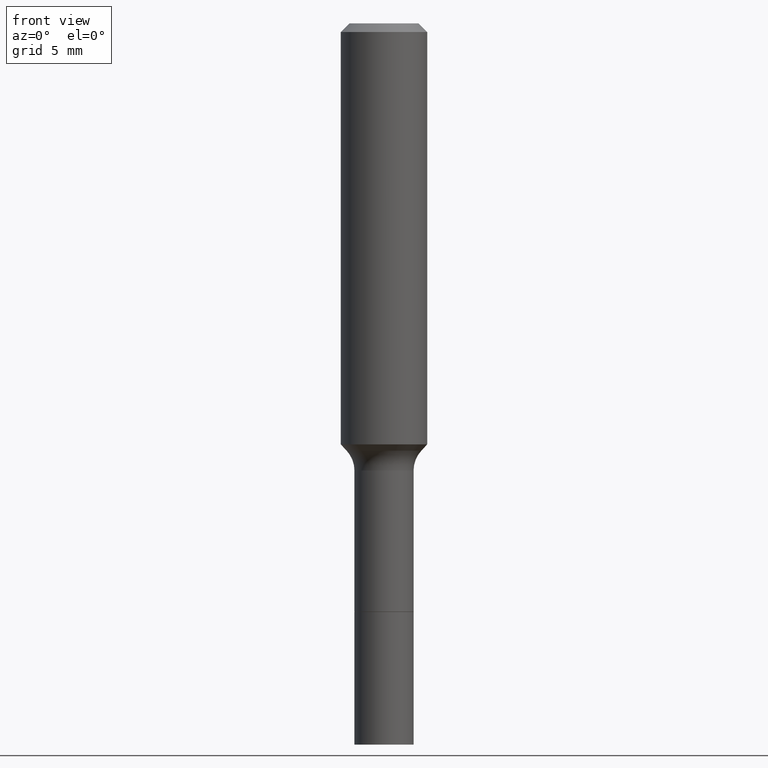
[diagram: clean part render]
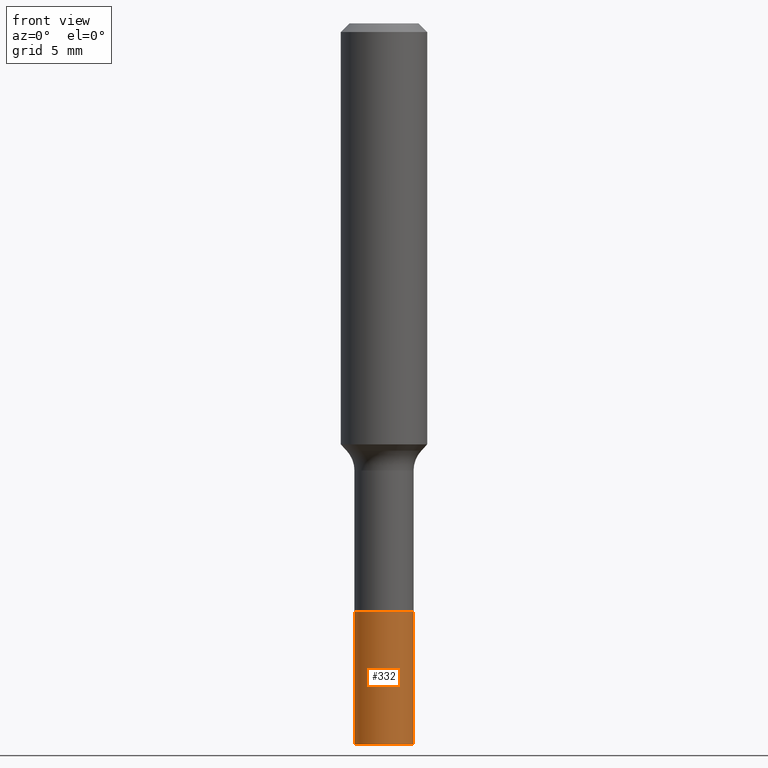
[diagram: same view with one face highlighted and labeled with its STEP entity id]
A machine part, front view. The second image highlights one B-rep face of the part: STEP entity #332.
In plain terms, the highlighted cylindrical surface (edge-blend (fillet) strip) has radius 2.0498 mm, axis along (-0, 0, 1).
Its self-contained STEP definition (entity closure, byte-faithful):
#14 = VERTEX_POINT ( 'NONE', #344 ) ;
#20 = CARTESIAN_POINT ( 'NONE',  ( 3.928645637136421723E-29, -5.609064770851513425E-15, -1.606499999999999817 ) ) ;
#21 = CARTESIAN_POINT ( 'NONE',  ( 0.08069999999999999396, -6.172589858940796076E-15, -1.606499999999999817 ) ) ;
#22 = CARTESIAN_POINT ( 'NONE',  ( 4.813905344975441835E-29, -6.872981015512731707E-15, -1.968500000000000139 ) ) ;
#27 = EDGE_CURVE ( 'NONE', #270, #290, #396, .T. ) ;
#45 = AXIS2_PLACEMENT_3D ( 'NONE', #22, #187, #347 ) ;
#49 = ORIENTED_EDGE ( 'NONE', *, *, #27, .T. ) ;
#55 = ORIENTED_EDGE ( 'NONE', *, *, #480, .F. ) ;
#64 = EDGE_CURVE ( 'NONE', #270, #14, #473, .T. ) ;
#102 = VERTEX_POINT ( 'NONE', #21 ) ;
#108 = CYLINDRICAL_SURFACE ( 'NONE', #364, 0.08070000000000004947 ) ;
#134 = VECTOR ( 'NONE', #309, 39.37007874015748143 ) ;
#158 = CARTESIAN_POINT ( 'NONE',  ( 3.928645637136421723E-29, -5.609064770851513425E-15, -1.606499999999999817 ) ) ;
#174 = ORIENTED_EDGE ( 'NONE', *, *, #477, .T. ) ;
#182 = DIRECTION ( 'NONE',  ( -2.445468806185136597E-29, 3.491481338843145583E-15, 1.000000000000000000 ) ) ;
#187 = DIRECTION ( 'NONE',  ( -2.445468806185136597E-29, 3.491481338843145583E-15, 1.000000000000000000 ) ) ;
#194 = CARTESIAN_POINT ( 'NONE',  ( 0.08070000000000010498, -7.436506103602013570E-15, -1.968500000000000139 ) ) ;
#196 = CARTESIAN_POINT ( 'NONE',  ( 0.08070000000000004947, -6.172589858940796076E-15, -1.606499999999999817 ) ) ;
#212 = EDGE_LOOP ( 'NONE', ( #456, #49, #174, #55 ) ) ;
#240 = AXIS2_PLACEMENT_3D ( 'NONE', #158, #357, #474 ) ;
#245 = DIRECTION ( 'NONE',  ( -2.445468806185136877E-29, 3.491481338843145188E-15, 1.000000000000000000 ) ) ;
#266 = FACE_OUTER_BOUND ( 'NONE', #212, .T. ) ;
#270 = VERTEX_POINT ( 'NONE', #300 ) ;
#290 = VERTEX_POINT ( 'NONE', #194 ) ;
#300 = CARTESIAN_POINT ( 'NONE',  ( -0.08070000000000010498, -5.667614905423721365E-15, -1.968500000000000139 ) ) ;
#309 = DIRECTION ( 'NONE',  ( -2.445468806185136877E-29, 3.491481338843145188E-15, 1.000000000000000000 ) ) ;
#332 = ADVANCED_FACE ( 'NONE', ( #266 ), #108, .T. ) ;
#344 = CARTESIAN_POINT ( 'NONE',  ( -0.08069999999999999396, -5.667614905423722154E-15, -1.606499999999999817 ) ) ;
#345 = DIRECTION ( 'NONE',  ( 1.000000000000000000, -6.982962677686266711E-15, 0.000000000000000000 ) ) ;
#347 = DIRECTION ( 'NONE',  ( 1.000000000000000000, -6.982962677686261977E-15, 0.000000000000000000 ) ) ;
#353 = CARTESIAN_POINT ( 'NONE',  ( -0.08070000000000004947, -5.035656783093112618E-15, -1.606499999999999817 ) ) ;
#357 = DIRECTION ( 'NONE',  ( -2.445468806185136597E-29, 3.491481338843145583E-15, 1.000000000000000000 ) ) ;
#361 = LINE ( 'NONE', #196, #501 ) ;
#364 = AXIS2_PLACEMENT_3D ( 'NONE', #20, #182, #345 ) ;
#396 = CIRCLE ( 'NONE', #45, 0.08070000000000010498 ) ;
#456 = ORIENTED_EDGE ( 'NONE', *, *, #64, .F. ) ;
#460 = CIRCLE ( 'NONE', #240, 0.08069999999999999396 ) ;
#473 = LINE ( 'NONE', #353, #134 ) ;
#474 = DIRECTION ( 'NONE',  ( 1.000000000000000000, -6.982962677686271444E-15, 0.000000000000000000 ) ) ;
#477 = EDGE_CURVE ( 'NONE', #290, #102, #361, .T. ) ;
#480 = EDGE_CURVE ( 'NONE', #14, #102, #460, .T. ) ;
#501 = VECTOR ( 'NONE', #245, 39.37007874015748143 ) ;